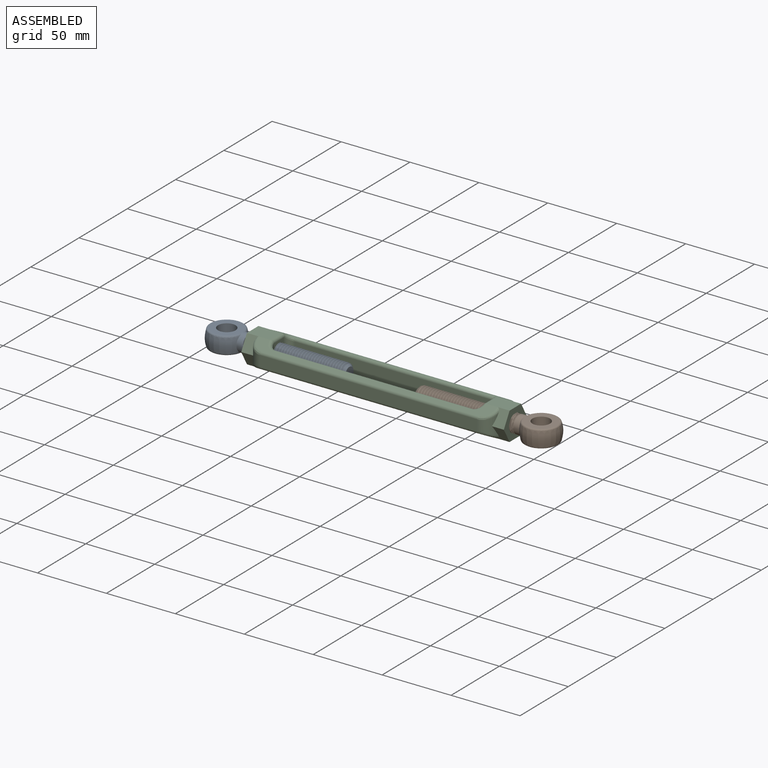
[diagram: assembled view]
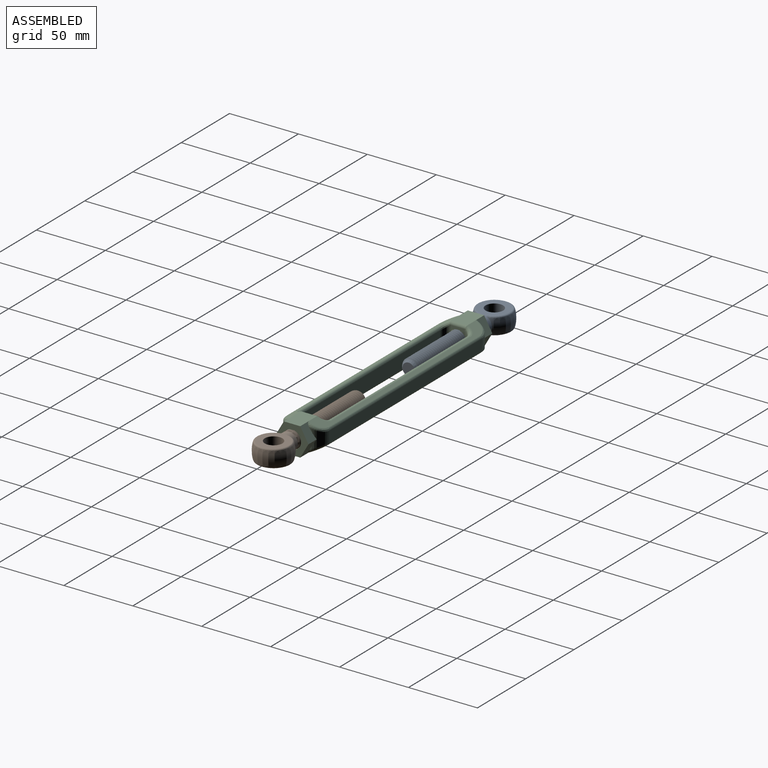
[diagram: assembled view, second angle]
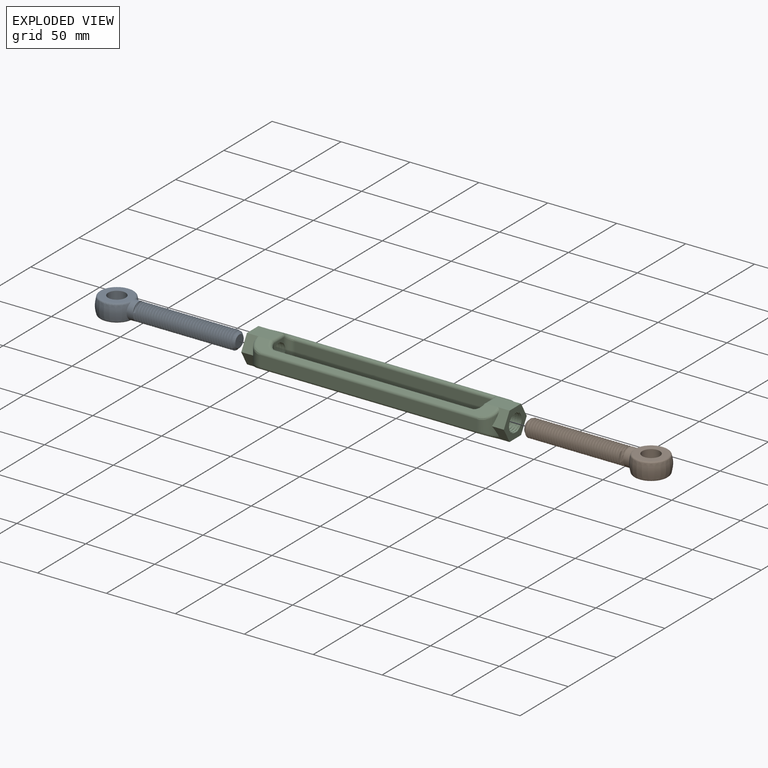
[diagram: exploded view]
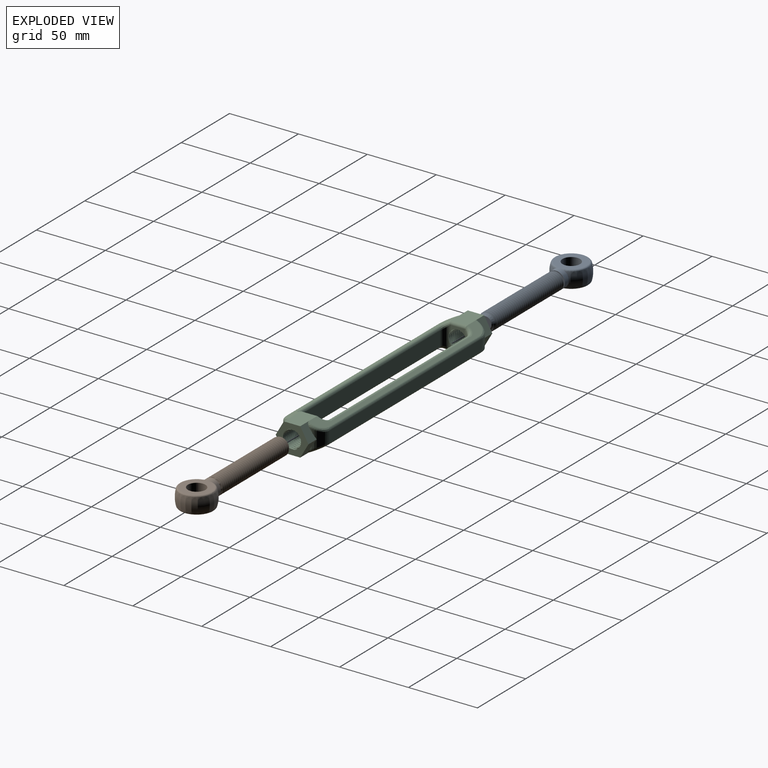
[diagram: exploded view, second angle]
ASSEMBLY  parts=3 mates=2
PART A: 59 faces, bbox 27.5x103.2x13.5 mm
  f0: revolved ~26.13x26.06mm, area 1651.7mm2, adj f1,f2,f52,f55
  f1: torus R=11.08mm, axis (0,0,1), area 115mm2, adj f0,f4,f51,f56
  f2: torus R=11.08mm, axis (0,0,1), area 115mm2, adj f0,f3,f53,f54
  f3: plane 22.17x22.17mm, normal (0,0,1), area 254mm2, adj f2,f58
  f4: plane 22.17x22.17mm, normal (0,0,-1), area 254mm2, adj f1,f57
  f5: cylinder r=6.35mm len=12.7mm, axis (0,0,-1), area 496.2mm2, adj f57,f58
  f6: cylinder r=6.35mm len=12.7mm, axis (0,1,0), area 172.7mm2, adj f7,f46,f49,f50,f51,f52,f53,f54
  f7: cylinder r=6.35mm len=12.7mm, axis (0,1,0), area 9.7mm2, adj f6,f8,f48,f49
  f8: cylinder r=6.35mm len=12.7mm, axis (0,1,0), area 9.7mm2, adj f7,f9,f48,f49
  f9: cylinder r=6.35mm len=12.7mm, axis (0,1,0), area 9.7mm2, adj f8,f10,f48,f49
  f10: cylinder r=6.35mm len=12.7mm, axis (0,1,0), area 9.7mm2, adj f9,f11,f48,f49
  f11: cylinder r=6.35mm len=12.7mm, axis (0,1,0), area 9.8mm2, adj f10,f12,f48,f49
  f12: cylinder r=6.35mm len=12.7mm, axis (0,1,0), area 9.7mm2, adj f11,f13,f48,f49
  f13: cylinder r=6.35mm len=12.7mm, axis (0,1,0), area 9.7mm2, adj f12,f14,f48,f49
  f14: cylinder r=6.35mm len=12.7mm, axis (0,1,0), area 9.7mm2, adj f13,f15,f48,f49
  f15: cylinder r=6.35mm len=12.7mm, axis (0,1,0), area 9.8mm2, adj f14,f16,f48,f49
  f16: cylinder r=6.35mm len=12.7mm, axis (0,1,0), area 9.7mm2, adj f15,f17,f48,f49
  f17: cylinder r=6.35mm len=12.7mm, axis (0,1,0), area 9.7mm2, adj f16,f18,f48,f49
  f18: cylinder r=6.35mm len=12.7mm, axis (0,1,0), area 9.7mm2, adj f17,f19,f48,f49
  f19: cylinder r=6.35mm len=12.7mm, axis (0,1,0), area 9.7mm2, adj f18,f20,f48,f49
  f20: cylinder r=6.35mm len=12.7mm, axis (0,1,0), area 9.8mm2, adj f19,f21,f48,f49
  f21: cylinder r=6.35mm len=12.7mm, axis (0,1,0), area 9.7mm2, adj f20,f22,f48,f49
  f22: cylinder r=6.35mm len=12.7mm, axis (0,1,0), area 9.7mm2, adj f21,f23,f48,f49
  f23: cylinder r=6.35mm len=12.7mm, axis (0,1,0), area 9.7mm2, adj f22,f24,f48,f49
  f24: cylinder r=6.35mm len=12.7mm, axis (0,1,0), area 9.8mm2, adj f23,f25,f48,f49
  f25: cylinder r=6.35mm len=12.7mm, axis (0,1,0), area 9.7mm2, adj f24,f26,f48,f49
  f26: cylinder r=6.35mm len=12.7mm, axis (0,1,0), area 9.7mm2, adj f25,f27,f48,f49
  f27: cylinder r=6.35mm len=12.7mm, axis (0,1,0), area 9.7mm2, adj f26,f28,f48,f49
  f28: cylinder r=6.35mm len=12.7mm, axis (0,1,0), area 9.7mm2, adj f27,f29,f48,f49
  f29: cylinder r=6.35mm len=12.7mm, axis (0,1,0), area 9.7mm2, adj f28,f30,f48,f49
  f30: cylinder r=6.35mm len=12.7mm, axis (0,1,0), area 9.7mm2, adj f29,f31,f48,f49
  f31: cylinder r=6.35mm len=12.7mm, axis (0,1,0), area 9.8mm2, adj f30,f32,f48,f49
  f32: cylinder r=6.35mm len=12.7mm, axis (0,1,0), area 9.7mm2, adj f31,f33,f48,f49
  f33: cylinder r=6.35mm len=12.7mm, axis (0,1,0), area 9.7mm2, adj f32,f34,f48,f49
  f34: cylinder r=6.35mm len=12.7mm, axis (0,1,0), area 9.7mm2, adj f33,f35,f48,f49
  f35: cylinder r=6.35mm len=12.7mm, axis (0,1,0), area 9.7mm2, adj f34,f36,f48,f49
  f36: cylinder r=6.35mm len=12.7mm, axis (0,1,0), area 9.7mm2, adj f35,f37,f48,f49
  f37: cylinder r=6.35mm len=12.7mm, axis (0,1,0), area 9.7mm2, adj f36,f38,f48,f49
  f38: cylinder r=6.35mm len=12.7mm, axis (0,1,0), area 9.7mm2, adj f37,f39,f48,f49
  f39: cylinder r=6.35mm len=12.7mm, axis (0,1,0), area 9.7mm2, adj f38,f40,f48,f49
  f40: cylinder r=6.35mm len=12.7mm, axis (0,1,0), area 9.8mm2, adj f39,f41,f48,f49
  f41: cylinder r=6.35mm len=12.7mm, axis (0,1,0), area 9.7mm2, adj f40,f42,f48,f49
  f42: cylinder r=6.35mm len=12.7mm, axis (0,1,0), area 9.7mm2, adj f41,f43,f48,f49
  f43: cylinder r=6.35mm len=4.5mm, axis (0,1,0), area 0.6mm2, adj f42,f44,f48
  f44: cone r=6.35mm half-angle=45deg, axis (0,1,0), area 60.2mm2, adj f43,f45,f47,f48,f49
  f45: plane 8.79x8.79mm, normal (0,-1,0), area 60.7mm2, adj f44
  f46: plane 0.85x0.49mm, normal (1,0,0), area 0.2mm2, adj f6,f48,f50
  f47: cylinder r=5.08mm len=72.34mm, axis (0,1,0), area 284.5mm2, adj f44,f48,f49,f50
  f48: bspline ~73.61x13.35mm, area 1927.5mm2, adj f7,f8,f9,f10,f11,f12,f13,f14
  f49: bspline ~73.22x13.35mm, area 1931.9mm2, adj f6,f7,f8,f9,f10,f11,f12,f13
  f50: plane 13.46x11.61mm, normal (0,-1,0), area 19.4mm2, adj f6,f46,f47,f48,f49
  f51: bspline ~4.02x1.4mm, area 0.2mm2, adj f1,f6,f52
  f52: bspline ~12.15x4.3mm, area 1.9mm2, adj f0,f6,f51,f53
  f53: bspline ~4.02x1.4mm, area 0.2mm2, adj f2,f6,f52
  f54: bspline ~4.02x1.4mm, area 0.2mm2, adj f2,f6,f55
  f55: bspline ~12.15x4.3mm, area 1.9mm2, adj f0,f6,f54,f56
  f56: bspline ~4.02x1.4mm, area 0.2mm2, adj f1,f6,f55
  f57: torus R=6.48mm, axis (0,0,1), area 8.4mm2, adj f4,f5
  f58: torus R=6.48mm, axis (0,0,1), area 8.4mm2, adj f3,f5
PART B: same geometry as A
PART C: 156 faces, bbox 194x33.5x22.4 mm
  f0: cylinder r=6.35mm len=12.7mm, axis (-1,0,0), area 18.3mm2, adj f1,f155
  f1: cone r=5.54mm half-angle=60deg, axis (-0.99,-0.15,0), area 9.5mm2, adj f0,f2
  f2: cylinder r=6.59mm len=13.29mm, axis (0.99,0.15,0), area 51.7mm2, adj f1,f3,f152,f153,f154
  f3: plane 10.56x5.07mm, normal (1,0,0), area 22.4mm2, adj f2,f4,f151,f152,f154
  f4: cylinder r=4.76mm len=16.46mm, axis (0,0,-1), area 85.3mm2, adj f3,f5,f6,f147,f148,f149,f150,f153
  f5: cylinder r=6.35mm len=8.4mm, axis (-1,0,0), area 0mm2, adj f4,f152
  f6: torus R=6.82mm, axis (0,0,1), area 2.8mm2, adj f4,f7,f147,f151
  f7: plane 17.09x11.88mm, normal (0,0,-1), area 201.9mm2, adj f6,f8,f104,f105,f143,f144,f145,f146
  f8: plane 173.05x8.82mm, normal (0,0.46,-0.89), area 550.7mm2, adj f7,f9,f10,f100,f101,f102,f103,f147
  f9: cylinder r=2.06mm len=142.88mm, axis (-1,0,0), area 602.2mm2, adj f8,f10,f147,f148
  f10: bspline ~7.62x6.82mm, area 34mm2, adj f8,f9,f11,f99,f100
  f11: cylinder r=4.76mm len=16.46mm, axis (0,0,-1), area 85.3mm2, adj f10,f12,f95,f96,f97,f98,f99,f148
  f12: cylinder r=6.35mm len=8.4mm, axis (-1,0,0), area 0mm2, adj f11,f13
  f13: cone r=6.59mm half-angle=60deg, axis (-0.99,0.15,0), area 2.1mm2, adj f12,f14,f95,f98
  f14: cylinder r=6.59mm len=13.29mm, axis (-0.99,0.15,0), area 51.7mm2, adj f13,f15,f94,f95,f98
  f15: cylinder r=4.76mm len=16.46mm, axis (0,0,-1), area 83.2mm2, adj f14,f16,f18,f20,f92,f93,f95,f98
  f16: torus R=6.82mm, axis (0,0,1), area 2.8mm2, adj f15,f17,f18,f100
  f17: cylinder r=2.06mm len=9.53mm, axis (0,1,0), area 30.8mm2, adj f16,f98,f99,f100
  f18: bspline ~7.62x6.82mm, area 34mm2, adj f15,f16,f19,f100,f144
  f19: cylinder r=2.06mm len=142.88mm, axis (1,0,0), area 602.2mm2, adj f18,f20,f144,f145
  f20: plane 142.88x10.1mm, normal (0,1,0), area 1442.7mm2, adj f15,f19,f21,f154
  f21: cylinder r=2.06mm len=142.88mm, axis (-1,0,0), area 602.2mm2, adj f20,f22,f91,f92
  f22: plane 173.05x8.82mm, normal (0,-0.46,0.89), area 550.7mm2, adj f21,f23,f84,f87,f89,f90,f91,f92
  f23: bspline ~11.13x9.93mm, area 38.2mm2, adj f22,f24,f83,f90
  f24: cylinder r=9.94mm len=14.5mm, axis (0,0,-1), area 120.9mm2, adj f23,f25,f82,f83,f143
  f25: bspline ~11.13x9.93mm, area 38.2mm2, adj f24,f26,f143,f144
  f26: cylinder r=2.06mm len=157.29mm, axis (1,0,0), area 353.7mm2, adj f25,f27,f82,f144
  f27: bspline ~11.13x9.93mm, area 38.2mm2, adj f26,f28,f81,f144
  f28: cylinder r=9.94mm len=14.5mm, axis (0,0,-1), area 120.9mm2, adj f27,f29,f81,f82,f89
  f29: plane 10.96x9.45mm, normal (0,-0.87,0.5), area 88.3mm2, adj f28,f30,f81,f87,f89
  f30: plane 25.52x22.34mm, normal (1,0,0), area 233.3mm2, adj f29,f31,f32,f34,f35,f70,f80,f81
  f31: cylinder r=6.59mm len=13.07mm, axis (-0.99,0.15,0), area 0mm2, adj f30,f32
  f32: cone r=6.59mm half-angle=60deg, axis (-0.99,0.15,0), area 4.3mm2, adj f30,f31,f33
  f33: cylinder r=6.35mm len=12.33mm, axis (-1,0,0), area 0mm2, adj f32,f34
  f34: cone r=5.54mm half-angle=60deg, axis (0.99,-0.15,0), area 1.7mm2, adj f30,f33,f35
  f35: cylinder r=6.59mm len=13.29mm, axis (-0.99,0.15,0), area 60.1mm2, adj f30,f34,f36
  f36: cone r=6.59mm half-angle=60deg, axis (-0.99,0.15,0), area 9.5mm2, adj f35,f37
  f37: cylinder r=6.35mm len=12.7mm, axis (-1,0,0), area 18.3mm2, adj f36,f38
  f38: cone r=5.54mm half-angle=60deg, axis (0.99,-0.15,0), area 9.5mm2, adj f37,f39
  f39: cylinder r=6.59mm len=13.29mm, axis (-0.99,0.15,0), area 70.8mm2, adj f38,f40
  f40: cone r=6.59mm half-angle=60deg, axis (-0.99,0.15,0), area 9.5mm2, adj f39,f41
  f41: cylinder r=6.35mm len=12.7mm, axis (-1,0,0), area 18.3mm2, adj f40,f42
  f42: cone r=5.54mm half-angle=60deg, axis (0.99,-0.15,0), area 9.5mm2, adj f41,f43
  f43: cylinder r=6.59mm len=13.29mm, axis (-0.99,0.15,0), area 70.8mm2, adj f42,f44
  f44: cone r=6.59mm half-angle=60deg, axis (-0.99,0.15,0), area 9.5mm2, adj f43,f45
  f45: cylinder r=6.35mm len=12.7mm, axis (-1,0,0), area 18.3mm2, adj f44,f46
  f46: cone r=5.54mm half-angle=60deg, axis (0.99,-0.15,0), area 9.5mm2, adj f45,f47
  f47: cylinder r=6.59mm len=13.29mm, axis (-0.99,0.15,0), area 70.8mm2, adj f46,f48
  f48: cone r=6.59mm half-angle=60deg, axis (-0.99,0.15,0), area 9.5mm2, adj f47,f49
  f49: cylinder r=6.35mm len=12.7mm, axis (-1,0,0), area 18.3mm2, adj f48,f50
  f50: cone r=5.54mm half-angle=60deg, axis (0.99,-0.15,0), area 9.5mm2, adj f49,f51
  f51: cylinder r=6.59mm len=13.29mm, axis (-0.99,0.15,0), area 70.8mm2, adj f50,f52
  f52: cone r=6.59mm half-angle=60deg, axis (-0.99,0.15,0), area 9.5mm2, adj f51,f53
  f53: cylinder r=6.35mm len=12.7mm, axis (-1,0,0), area 18.3mm2, adj f52,f54
  f54: cone r=5.54mm half-angle=60deg, axis (0.99,-0.15,0), area 9.5mm2, adj f53,f55
  f55: cylinder r=6.59mm len=13.29mm, axis (-0.99,0.15,0), area 70.8mm2, adj f54,f56
  f56: cone r=6.59mm half-angle=60deg, axis (-0.99,0.15,0), area 9.5mm2, adj f55,f57
  f57: cylinder r=6.35mm len=12.7mm, axis (-1,0,0), area 18.3mm2, adj f56,f58
  f58: cone r=5.54mm half-angle=60deg, axis (0.99,-0.15,0), area 9.5mm2, adj f57,f59
  f59: cylinder r=6.59mm len=13.29mm, axis (-0.99,0.15,0), area 70.8mm2, adj f58,f60
  f60: cone r=6.59mm half-angle=60deg, axis (-0.99,0.15,0), area 9.5mm2, adj f59,f61
  f61: cylinder r=6.35mm len=12.7mm, axis (-1,0,0), area 18.3mm2, adj f60,f62
  f62: cone r=5.54mm half-angle=60deg, axis (0.99,-0.15,0), area 9.5mm2, adj f61,f63
  f63: cylinder r=6.59mm len=13.29mm, axis (-0.99,0.15,0), area 70.8mm2, adj f62,f64
  f64: cone r=6.59mm half-angle=60deg, axis (-0.99,0.15,0), area 9.5mm2, adj f63,f65
  f65: cylinder r=6.35mm len=12.7mm, axis (-1,0,0), area 18.3mm2, adj f64,f66
  f66: cone r=5.54mm half-angle=60deg, axis (0.99,-0.15,0), area 9.5mm2, adj f65,f67
  f67: cylinder r=6.59mm len=13.29mm, axis (-0.99,0.15,0), area 70.8mm2, adj f66,f68
  f68: cone r=6.59mm half-angle=60deg, axis (-0.99,0.15,0), area 9.5mm2, adj f67,f69
  f69: cylinder r=6.35mm len=12.7mm, axis (-1,0,0), area 18.3mm2, adj f68,f94
  f70: plane 10.96x9.45mm, normal (0,0.87,0.5), area 88.3mm2, adj f30,f71,f79,f80,f87
  f71: bspline ~11.13x9.93mm, area 38.2mm2, adj f70,f72,f78,f79
  f72: plane 173.05x8.82mm, normal (0,0.46,0.89), area 550.7mm2, adj f71,f73,f74,f78,f84,f87,f97,f149
  f73: cylinder r=2.06mm len=142.88mm, axis (1,0,0), area 602.2mm2, adj f72,f97,f148,f149
  f74: bspline ~11.13x9.93mm, area 38.2mm2, adj f72,f75,f77,f78
  f75: cylinder r=9.94mm len=14.5mm, axis (0,0,-1), area 120.9mm2, adj f74,f76,f77,f103,f104
  f76: plane 157.29x7.78mm, normal (0,1,0), area 1224.3mm2, adj f75,f78,f79,f102
  f77: plane 10.96x9.45mm, normal (0,0.87,0.5), area 88.3mm2, adj f74,f75,f84,f104,f105
  f78: cylinder r=2.06mm len=157.29mm, axis (1,0,0), area 353.7mm2, adj f71,f72,f74,f76
  f79: cylinder r=9.94mm len=14.5mm, axis (0,0,-1), area 120.9mm2, adj f70,f71,f76,f80,f101
  f80: plane 10.96x9.45mm, normal (0,0.87,-0.5), area 88.3mm2, adj f30,f70,f79,f100,f101
  f81: plane 10.96x9.45mm, normal (0,-0.87,-0.5), area 88.3mm2, adj f27,f28,f29,f30,f100
  f82: plane 157.29x7.78mm, normal (0,-1,0), area 1224.3mm2, adj f24,f26,f28,f90
  f83: plane 10.96x9.45mm, normal (0,-0.87,0.5), area 88.3mm2, adj f23,f24,f84,f105,f143
  f84: plane 17.09x11.88mm, normal (0,0,1), area 201.9mm2, adj f22,f72,f77,f83,f85,f86,f91,f105
  f85: cylinder r=2.06mm len=9.53mm, axis (0,-1,0), area 30.8mm2, adj f84,f86,f150,f153
  f86: torus R=6.82mm, axis (0,0,-1), area 2.8mm2, adj f84,f85,f91,f154
  f87: plane 17.09x11.88mm, normal (0,0,1), area 201.9mm2, adj f22,f29,f30,f70,f72,f88,f92,f93
  f88: cylinder r=2.06mm len=9.53mm, axis (0,1,0), area 30.8mm2, adj f87,f93,f95,f96
  f89: bspline ~11.13x9.93mm, area 38.2mm2, adj f22,f28,f29,f90
  f90: cylinder r=2.06mm len=157.29mm, axis (-1,0,0), area 353.7mm2, adj f22,f23,f82,f89
  f91: bspline ~7.62x6.82mm, area 34mm2, adj f21,f22,f84,f86,f154
  f92: bspline ~7.62x6.82mm, area 34mm2, adj f15,f21,f22,f87,f93
  f93: torus R=6.82mm, axis (0,0,-1), area 2.8mm2, adj f15,f87,f88,f92
  f94: cone r=5.54mm half-angle=60deg, axis (0.99,-0.15,0), area 9.5mm2, adj f14,f69
  f95: plane 10.56x5.07mm, normal (-1,0,0), area 22.6mm2, adj f11,f13,f14,f15,f88
  f96: torus R=6.82mm, axis (0,0,-1), area 2.8mm2, adj f11,f87,f88,f97
  f97: bspline ~7.62x6.82mm, area 34mm2, adj f11,f72,f73,f87,f96
  f98: plane 10.48x4.98mm, normal (-1,0,0), area 22.5mm2, adj f11,f13,f14,f15,f17
  f99: torus R=6.82mm, axis (0,0,1), area 2.8mm2, adj f10,f11,f17,f100
  f100: plane 17.09x11.88mm, normal (0,0,-1), area 201.9mm2, adj f8,f10,f16,f17,f18,f30,f80,f81
  f101: bspline ~11.13x9.93mm, area 38.2mm2, adj f8,f79,f80,f102
  f102: cylinder r=2.06mm len=157.29mm, axis (1,0,0), area 353.7mm2, adj f8,f76,f101,f103
  f103: bspline ~11.13x9.93mm, area 38.2mm2, adj f8,f75,f102,f104
  f104: plane 10.96x9.45mm, normal (0,0.87,-0.5), area 88.3mm2, adj f7,f75,f77,f103,f105
  f105: plane 25.52x22.34mm, normal (-1,0,0), area 233.6mm2, adj f7,f77,f83,f84,f104,f106,f107,f109
  f106: cylinder r=6.59mm len=13.07mm, axis (0.99,0.15,0), area 0mm2, adj f105,f107
  f107: cone r=6.59mm half-angle=60deg, axis (0.99,0.15,0), area 4.3mm2, adj f105,f106,f108
  f108: cylinder r=6.35mm len=12.33mm, axis (-1,0,0), area 0mm2, adj f107,f142
  f109: cylinder r=6.59mm len=13.29mm, axis (0.99,0.15,0), area 60.1mm2, adj f105,f110,f142
  f110: cone r=6.59mm half-angle=60deg, axis (0.99,0.15,0), area 9.5mm2, adj f109,f111
  f111: cylinder r=6.35mm len=12.7mm, axis (-1,0,0), area 18.3mm2, adj f110,f112
  f112: cone r=5.54mm half-angle=60deg, axis (-0.99,-0.15,0), area 9.5mm2, adj f111,f113
  f113: cylinder r=6.59mm len=13.29mm, axis (0.99,0.15,0), area 70.8mm2, adj f112,f114
  f114: cone r=6.59mm half-angle=60deg, axis (0.99,0.15,0), area 9.5mm2, adj f113,f115
  f115: cylinder r=6.35mm len=12.7mm, axis (-1,0,0), area 18.3mm2, adj f114,f116
  f116: cone r=5.54mm half-angle=60deg, axis (-0.99,-0.15,0), area 9.5mm2, adj f115,f117
  f117: cylinder r=6.59mm len=13.29mm, axis (0.99,0.15,0), area 70.8mm2, adj f116,f118
  f118: cone r=6.59mm half-angle=60deg, axis (0.99,0.15,0), area 9.5mm2, adj f117,f119
  f119: cylinder r=6.35mm len=12.7mm, axis (-1,0,0), area 18.3mm2, adj f118,f120
  f120: cone r=5.54mm half-angle=60deg, axis (-0.99,-0.15,0), area 9.5mm2, adj f119,f121
  f121: cylinder r=6.59mm len=13.29mm, axis (0.99,0.15,0), area 70.8mm2, adj f120,f122
  f122: cone r=6.59mm half-angle=60deg, axis (0.99,0.15,0), area 9.5mm2, adj f121,f123
  f123: cylinder r=6.35mm len=12.7mm, axis (-1,0,0), area 18.3mm2, adj f122,f124
  f124: cone r=5.54mm half-angle=60deg, axis (-0.99,-0.15,0), area 9.5mm2, adj f123,f125
  f125: cylinder r=6.59mm len=13.29mm, axis (0.99,0.15,0), area 70.8mm2, adj f124,f126
  f126: cone r=6.59mm half-angle=60deg, axis (0.99,0.15,0), area 9.5mm2, adj f125,f127
  f127: cylinder r=6.35mm len=12.7mm, axis (-1,0,0), area 18.3mm2, adj f126,f128
  f128: cone r=5.54mm half-angle=60deg, axis (-0.99,-0.15,0), area 9.5mm2, adj f127,f129
  f129: cylinder r=6.59mm len=13.29mm, axis (0.99,0.15,0), area 70.8mm2, adj f128,f130
  f130: cone r=6.59mm half-angle=60deg, axis (0.99,0.15,0), area 9.5mm2, adj f129,f131
  f131: cylinder r=6.35mm len=12.7mm, axis (-1,0,0), area 18.3mm2, adj f130,f132
  f132: cone r=5.54mm half-angle=60deg, axis (-0.99,-0.15,0), area 9.5mm2, adj f131,f133
  f133: cylinder r=6.59mm len=13.29mm, axis (0.99,0.15,0), area 70.8mm2, adj f132,f134
  f134: cone r=6.59mm half-angle=60deg, axis (0.99,0.15,0), area 9.5mm2, adj f133,f135
  f135: cylinder r=6.35mm len=12.7mm, axis (-1,0,0), area 18.3mm2, adj f134,f136
  f136: cone r=5.54mm half-angle=60deg, axis (-0.99,-0.15,0), area 9.5mm2, adj f135,f137
  f137: cylinder r=6.59mm len=13.29mm, axis (0.99,0.15,0), area 70.8mm2, adj f136,f138
  f138: cone r=6.59mm half-angle=60deg, axis (0.99,0.15,0), area 9.5mm2, adj f137,f139
  f139: cylinder r=6.35mm len=12.7mm, axis (-1,0,0), area 18.3mm2, adj f138,f140
  f140: cone r=5.54mm half-angle=60deg, axis (-0.99,-0.15,0), area 9.5mm2, adj f139,f141
  f141: cylinder r=6.59mm len=13.29mm, axis (0.99,0.15,0), area 70.8mm2, adj f140,f155
  f142: cone r=5.54mm half-angle=60deg, axis (-0.99,-0.15,0), area 1.7mm2, adj f105,f108,f109
  f143: plane 10.96x9.45mm, normal (0,-0.87,-0.5), area 88.3mm2, adj f7,f24,f25,f83,f105
  f144: plane 173.05x8.82mm, normal (0,-0.46,-0.89), area 550.7mm2, adj f7,f18,f19,f25,f26,f27,f100,f145
  f145: bspline ~7.62x6.82mm, area 34mm2, adj f7,f19,f144,f146,f154
  f146: torus R=6.82mm, axis (0,0,1), area 2.8mm2, adj f7,f145,f151,f154
  f147: bspline ~7.62x6.82mm, area 34mm2, adj f4,f6,f7,f8,f9
  f148: plane 142.88x10.1mm, normal (0,-1,0), area 1442.7mm2, adj f4,f9,f11,f73
  f149: bspline ~7.62x6.82mm, area 34mm2, adj f4,f72,f73,f84,f150
  f150: torus R=6.82mm, axis (0,0,-1), area 2.8mm2, adj f4,f84,f85,f149
  f151: cylinder r=2.06mm len=9.53mm, axis (0,-1,0), area 30.8mm2, adj f3,f6,f7,f146
  f152: cone r=6.59mm half-angle=60deg, axis (0.99,0.15,0), area 2.1mm2, adj f2,f3,f5,f153
  f153: plane 10.48x4.98mm, normal (1,0,0), area 22.5mm2, adj f2,f4,f85,f152,f154
  f154: cylinder r=4.76mm len=16.46mm, axis (0,0,-1), area 83.2mm2, adj f2,f3,f20,f86,f91,f145,f146,f153
  f155: cone r=6.59mm half-angle=60deg, axis (0.99,0.15,0), area 9.5mm2, adj f0,f141
PLACE A rot(axis=(0,0,1),90deg) t=(-235.97,110.94,-7.83)mm
PLACE B rot(axis=(0,0,-1),90deg) t=(-96.57,110.64,-7.83)mm
PLACE C t=(-166.27,110.79,-7.83)mm fixed
MATE cylindrical C.f30 <-> B.f6  axis (1,0,0) through (-71.02,110.64,-7.83)mm
MATE cylindrical C.f105 <-> A.f6  axis (-1,0,0) through (-261.52,110.94,-7.83)mm
